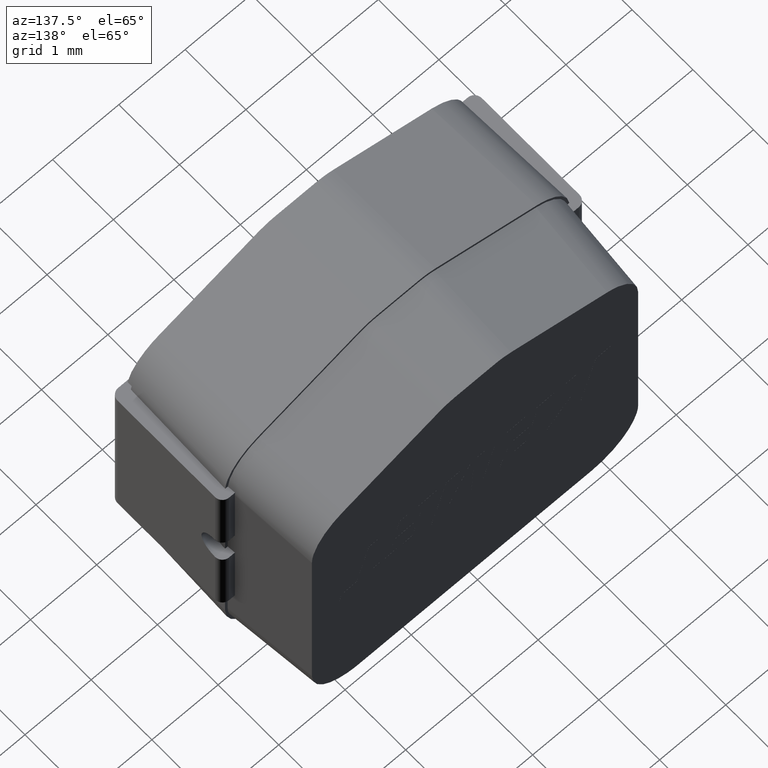
[diagram: clean part render]
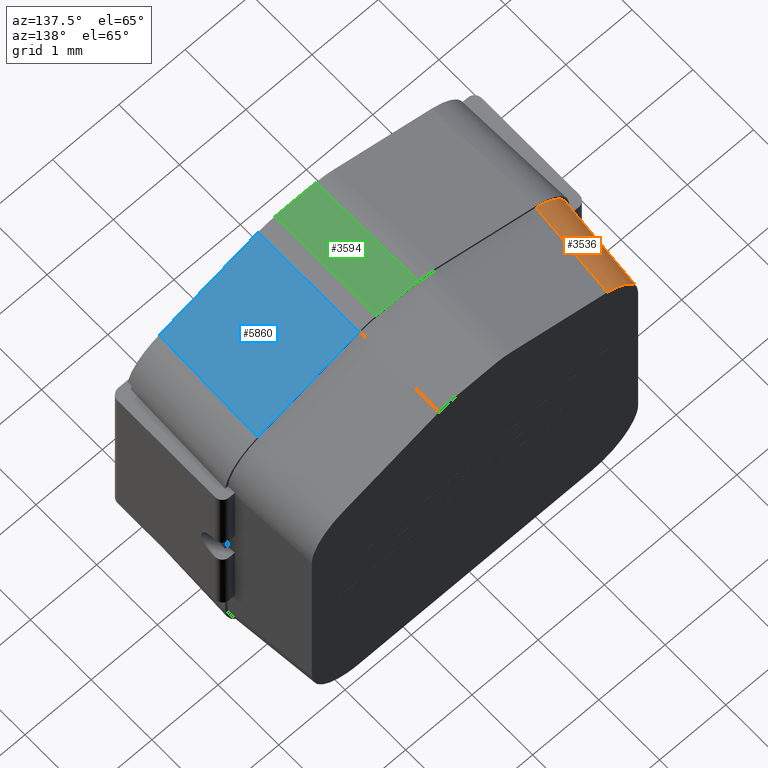
[diagram: same view with three faces highlighted in distinct colors, each labeled with its STEP entity id]
A machine part, auxiliary view with three faces highlighted in distinct colors.
Their STEP definitions:

[orange] entity #3536 — the highlighted cylindrical surface (partial cylindrical patch) has radius 0.71 mm, axis along (-0.0754, -0.9958, 0.0528).
#62 = VERTEX_POINT ( 'NONE', #2781 ) ;
#74 = CARTESIAN_POINT ( 'NONE',  ( -2.554833647306810729, 1.714679783632456767, 1.349999999999999867 ) ) ;
#238 = CARTESIAN_POINT ( 'NONE',  ( -2.286518789225265635, 2.959999999999999520, 1.785695894529399474 ) ) ;
#256 = ORIENTED_EDGE ( 'NONE', *, *, #1996, .F. ) ;
#444 = CARTESIAN_POINT ( 'NONE',  ( -1.997098575555594113, 2.959999999999999964, 1.891036237500124617 ) ) ;
#474 = VERTEX_POINT ( 'NONE', #444 ) ;
#504 = FACE_OUTER_BOUND ( 'NONE', #5349, .T. ) ;
#579 = DIRECTION ( 'NONE',  ( 0.07539555564725804182, 0.9957552200655834795, -0.05279253641171968020 ) ) ;
#668 = VERTEX_POINT ( 'NONE', #5033 ) ;
#670 = DIRECTION ( 'NONE',  ( 0.9971457380653673264, -0.07550084143950758220, 0.0000000000000000000 ) ) ;
#758 = CARTESIAN_POINT ( 'NONE',  ( -2.096140873847363917, 1.651940331433728426, 1.960386401365636244 ) ) ;
#1109 = CARTESIAN_POINT ( 'NONE',  ( -2.548948611716070456, 1.788000000000000034, 1.350000000000000089 ) ) ;
#1181 = ORIENTED_EDGE ( 'NONE', *, *, #3558, .F. ) ;
#1341 = CARTESIAN_POINT ( 'NONE',  ( -2.557765627673139974, 1.677999999999999936, 1.350000000000000089 ) ) ;
#1367 = VECTOR ( 'NONE', #579, 999.9999999999998863 ) ;
#1456 =( BOUNDED_CURVE ( )  B_SPLINE_CURVE ( 3, ( #2410, #2446, #238, #4702 ),
 .UNSPECIFIED., .F., .F. ) 
 B_SPLINE_CURVE_WITH_KNOTS ( ( 4, 4 ),
 ( 5.674317249562889742, 6.892053364796282722 ),
 .UNSPECIFIED. ) 
 CURVE ( )  GEOMETRIC_REPRESENTATION_ITEM ( )  RATIONAL_B_SPLINE_CURVE ( ( 1.000000000000000000, 0.8801972970401995555, 0.8801972970401995555, 1.000000000000000000 ) ) 
 REPRESENTATION_ITEM ( '' )  );
#1556 = CARTESIAN_POINT ( 'NONE',  ( -2.548948611716070456, 1.788000000000000034, 1.350000000000000089 ) ) ;
#1592 = AXIS2_PLACEMENT_3D ( 'NONE', #2488, #5136, #670 ) ;
#1782 = VECTOR ( 'NONE', #3428, 999.9999999999998863 ) ;
#1917 = LINE ( 'NONE', #758, #1782 ) ;
#1963 = CARTESIAN_POINT ( 'NONE',  ( -2.557765627673139974, 1.677999999999999936, 1.350000000000000089 ) ) ;
#1970 = ORIENTED_EDGE ( 'NONE', *, *, #2579, .T. ) ;
#1996 = EDGE_CURVE ( 'NONE', #3918, #668, #5110, .T. ) ;
#2063 = VERTEX_POINT ( 'NONE', #1963 ) ;
#2258 = CARTESIAN_POINT ( 'NONE',  ( -2.362445925600105134, 1.678000000000000158, 1.861359497538845220 ) ) ;
#2367 =( BOUNDED_CURVE ( )  B_SPLINE_CURVE ( 3, ( #4845, #2258, #2690, #1341 ),
 .UNSPECIFIED., .F., .F. ) 
 B_SPLINE_CURVE_WITH_KNOTS ( ( 4, 4 ),
 ( 5.674317249562889742, 6.812811160432424629 ),
 .UNSPECIFIED. ) 
 CURVE ( )  GEOMETRIC_REPRESENTATION_ITEM ( )  RATIONAL_B_SPLINE_CURVE ( ( 1.000000000000000000, 0.8948714022629530307, 0.8948714022629530307, 1.000000000000000000 ) ) 
 REPRESENTATION_ITEM ( '' )  );
#2410 = CARTESIAN_POINT ( 'NONE',  ( -2.462930860524719545, 2.959999999999999964, 1.225758788245342679 ) ) ;
#2446 = CARTESIAN_POINT ( 'NONE',  ( -2.462930860524720433, 2.959999999999999520, 1.533753346537836793 ) ) ;
#2488 = CARTESIAN_POINT ( 'NONE',  ( -1.853999684790078595, 1.598334734011678027, 1.295108952110854306 ) ) ;
#2546 = CYLINDRICAL_SURFACE ( 'NONE', #1592, 0.7099999999999999645 ) ;
#2579 = EDGE_CURVE ( 'NONE', #62, #2063, #4490, .T. ) ;
#2690 = CARTESIAN_POINT ( 'NONE',  ( -2.535132902920688824, 1.678000000000000158, 1.634509479704553625 ) ) ;
#2781 = CARTESIAN_POINT ( 'NONE',  ( -2.548948611716070456, 1.788000000000000034, 1.350000000000000089 ) ) ;
#2861 = ORIENTED_EDGE ( 'NONE', *, *, #4776, .F. ) ;
#3210 = ORIENTED_EDGE ( 'NONE', *, *, #5772, .F. ) ;
#3305 = ORIENTED_EDGE ( 'NONE', *, *, #5359, .F. ) ;
#3349 =( BOUNDED_CURVE ( )  B_SPLINE_CURVE ( 3, ( #1556, #5679, #5245, #5265 ),
 .UNSPECIFIED., .F., .F. ) 
 B_SPLINE_CURVE_WITH_KNOTS ( ( 4, 4 ),
 ( 0.5213919610274313499, 0.6088680576166981551 ),
 .UNSPECIFIED. ) 
 CURVE ( )  GEOMETRIC_REPRESENTATION_ITEM ( )  RATIONAL_B_SPLINE_CURVE ( ( 1.000000000000000000, 0.9993624293604638220, 0.9993624293604638220, 1.000000000000000000 ) ) 
 REPRESENTATION_ITEM ( '' )  );
#3356 = CARTESIAN_POINT ( 'NONE',  ( -2.544660921943755039, 1.880584448305675949, 1.282986793349293553 ) ) ;
#3428 = DIRECTION ( 'NONE',  ( -0.07539555564725805570, -0.9957552200655834795, 0.05279253641171968020 ) ) ;
#3536 = ADVANCED_FACE ( 'NONE', ( #504 ), #2546, .T. ) ;
#3558 = EDGE_CURVE ( 'NONE', #668, #474, #1456, .T. ) ;
#3720 = VERTEX_POINT ( 'NONE', #4363 ) ;
#3784 = CARTESIAN_POINT ( 'NONE',  ( -2.557765627673139974, 1.677999999999999936, 1.350000000000000089 ) ) ;
#3918 = VERTEX_POINT ( 'NONE', #5053 ) ;
#4363 = CARTESIAN_POINT ( 'NONE',  ( -2.094167715030875065, 1.677999999999999936, 1.959004780688245795 ) ) ;
#4490 =( BOUNDED_CURVE ( )  B_SPLINE_CURVE ( 3, ( #1109, #5485, #74, #3784 ),
 .UNSPECIFIED., .F., .T. ) 
 B_SPLINE_CURVE_WITH_KNOTS ( ( 4, 4 ),
 ( 4.624912883795422758, 4.633146776020831581 ),
 .UNSPECIFIED. ) 
 CURVE ( )  GEOMETRIC_REPRESENTATION_ITEM ( )  RATIONAL_B_SPLINE_CURVE ( ( 1.000000000000000000, 0.9999943502595481926, 0.9999943502595481926, 1.000000000000000000 ) ) 
 REPRESENTATION_ITEM ( '' )  );
#4702 = CARTESIAN_POINT ( 'NONE',  ( -1.997098575555594113, 2.959999999999999964, 1.891036237500124617 ) ) ;
#4776 = EDGE_CURVE ( 'NONE', #62, #3918, #3349, .T. ) ;
#4845 = CARTESIAN_POINT ( 'NONE',  ( -2.094167715030875065, 1.677999999999999936, 1.959004780688245795 ) ) ;
#5033 = CARTESIAN_POINT ( 'NONE',  ( -2.462930860524719545, 2.959999999999999964, 1.225758788245342679 ) ) ;
#5053 = CARTESIAN_POINT ( 'NONE',  ( -2.551671134678408226, 1.788000000000000034, 1.287895397150551569 ) ) ;
#5110 = LINE ( 'NONE', #3356, #1367 ) ;
#5136 = DIRECTION ( 'NONE',  ( -0.07539555564725804182, -0.9957552200655833685, 0.05279253641171967326 ) ) ;
#5245 = CARTESIAN_POINT ( 'NONE',  ( -2.551671134678408226, 1.788000000000000034, 1.308633596224506368 ) ) ;
#5265 = CARTESIAN_POINT ( 'NONE',  ( -2.551671134678408226, 1.788000000000000034, 1.287895397150551569 ) ) ;
#5349 = EDGE_LOOP ( 'NONE', ( #2861, #1970, #3305, #3210, #1181, #256 ) ) ;
#5359 = EDGE_CURVE ( 'NONE', #3720, #2063, #2367, .T. ) ;
#5485 = CARTESIAN_POINT ( 'NONE',  ( -2.551894625383076320, 1.751346657457445444, 1.349999999999999867 ) ) ;
#5679 = CARTESIAN_POINT ( 'NONE',  ( -2.550763048054926596, 1.788000000000000034, 1.329348337618574405 ) ) ;
#5772 = EDGE_CURVE ( 'NONE', #474, #3720, #1917, .T. ) ;

[blue] entity #5860 — the highlighted planar face has unit normal (0.3419, -0.0286, 0.9393).
#144 = EDGE_CURVE ( 'NONE', #3088, #5334, #2450, .T. ) ;
#337 = EDGE_CURVE ( 'NONE', #3088, #5193, #3314, .T. ) ;
#373 = DIRECTION ( 'NONE',  ( 0.02861374652457510798, 0.9993897286868245189, 0.02003556101292933503 ) ) ;
#428 = VECTOR ( 'NONE', #5251, 999.9999999999998863 ) ;
#556 = DIRECTION ( 'NONE',  ( -0.005046324248557979356, -0.9995776509022397116, -0.02861912696674281595 ) ) ;
#980 = DIRECTION ( 'NONE',  ( 0.9396926207859080948, 0.0000000000000000000, -0.3420201433256696011 ) ) ;
#1051 = CARTESIAN_POINT ( 'NONE',  ( 2.583568262622566003, 0.0000000000000000000, 1.772318168920743009 ) ) ;
#1263 = CARTESIAN_POINT ( 'NONE',  ( 2.058674063488480144, 0.0000000000000000000, 1.963364033544547249 ) ) ;
#1374 = LINE ( 'NONE', #2774, #5685 ) ;
#1839 = DIRECTION ( 'NONE',  ( 0.3418800445084970718, -0.02861949137229487239, 0.9393077024492342275 ) ) ;
#1910 = ORIENTED_EDGE ( 'NONE', *, *, #144, .F. ) ;
#2128 = VECTOR ( 'NONE', #373, 1000.000000000000000 ) ;
#2224 = PLANE ( 'NONE',  #4928 ) ;
#2450 = LINE ( 'NONE', #1051, #5847 ) ;
#2613 = EDGE_LOOP ( 'NONE', ( #1910, #2715, #5080, #3236 ) ) ;
#2637 = CARTESIAN_POINT ( 'NONE',  ( 2.107018193989935284, 1.688511059673867720, 1.997214958149860387 ) ) ;
#2702 = CARTESIAN_POINT ( 'NONE',  ( 2.600000000000003197, 1.677999999999999936, 1.817463996327659759 ) ) ;
#2715 = ORIENTED_EDGE ( 'NONE', *, *, #337, .T. ) ;
#2774 = CARTESIAN_POINT ( 'NONE',  ( 0.5657510247044343910, 0.0006667972367225338337, 2.506763898161967319 ) ) ;
#2785 = CARTESIAN_POINT ( 'NONE',  ( 0.5742189683468068573, 1.677999999999999936, 2.554787992990504630 ) ) ;
#2960 = CARTESIAN_POINT ( 'NONE',  ( 2.106717249534954650, 1.677999999999999936, 1.997004234573900749 ) ) ;
#3088 = VERTEX_POINT ( 'NONE', #1263 ) ;
#3236 = ORIENTED_EDGE ( 'NONE', *, *, #5538, .T. ) ;
#3288 = DIRECTION ( 'NONE',  ( -0.9396926207859080948, 0.0000000000000000000, 0.3420201433256695456 ) ) ;
#3314 = LINE ( 'NONE', #2637, #2128 ) ;
#3559 = CARTESIAN_POINT ( 'NONE',  ( 0.5657476584076176485, 0.0000000000000000000, 2.506744806944029680 ) ) ;
#4220 = CARTESIAN_POINT ( 'NONE',  ( 2.600000000000003197, 1.677999999999999936, 1.817463996327659759 ) ) ;
#4348 = EDGE_CURVE ( 'NONE', #5193, #5091, #4940, .T. ) ;
#4928 = AXIS2_PLACEMENT_3D ( 'NONE', #2702, #1839, #980 ) ;
#4940 = LINE ( 'NONE', #4220, #428 ) ;
#5026 = FACE_OUTER_BOUND ( 'NONE', #2613, .T. ) ;
#5080 = ORIENTED_EDGE ( 'NONE', *, *, #4348, .T. ) ;
#5091 = VERTEX_POINT ( 'NONE', #2785 ) ;
#5193 = VERTEX_POINT ( 'NONE', #2960 ) ;
#5251 = DIRECTION ( 'NONE',  ( -0.9396926207859082059, -0.0000000000000000000, 0.3420201433256696566 ) ) ;
#5334 = VERTEX_POINT ( 'NONE', #3559 ) ;
#5538 = EDGE_CURVE ( 'NONE', #5091, #5334, #1374, .T. ) ;
#5685 = VECTOR ( 'NONE', #556, 1000.000000000000114 ) ;
#5847 = VECTOR ( 'NONE', #3288, 1000.000000000000114 ) ;
#5860 = ADVANCED_FACE ( 'NONE', ( #5026 ), #2224, .T. ) ;

[green] entity #3594 — the highlighted planar face has unit normal (0, -0.0286, 0.9996).
#34 = EDGE_CURVE ( 'NONE', #4129, #215, #1597, .T. ) ;
#174 = VERTEX_POINT ( 'NONE', #1915 ) ;
#215 = VERTEX_POINT ( 'NONE', #4766 ) ;
#274 = VECTOR ( 'NONE', #3659, 999.9999999999998863 ) ;
#321 = ORIENTED_EDGE ( 'NONE', *, *, #1127, .T. ) ;
#507 = CARTESIAN_POINT ( 'NONE',  ( -0.3093409913230610320, 0.0006667972367225400137, 2.551975905171461889 ) ) ;
#553 = CARTESIAN_POINT ( 'NONE',  ( -2.600000000000000089, 1.677999999999999936, 2.599999999999999201 ) ) ;
#792 = CARTESIAN_POINT ( 'NONE',  ( 0.3178123012622514620, 1.678666797236722408, 2.600019091217936396 ) ) ;
#997 = ORIENTED_EDGE ( 'NONE', *, *, #1960, .F. ) ;
#1127 = EDGE_CURVE ( 'NONE', #215, #174, #1166, .T. ) ;
#1166 = LINE ( 'NONE', #4624, #4208 ) ;
#1307 = AXIS2_PLACEMENT_3D ( 'NONE', #3014, #2070, #2980 ) ;
#1597 = LINE ( 'NONE', #507, #274 ) ;
#1666 = ORIENTED_EDGE ( 'NONE', *, *, #34, .T. ) ;
#1737 = CARTESIAN_POINT ( 'NONE',  ( 0.3178089349654346640, 1.677999999999999936, 2.599999999999998757 ) ) ;
#1915 = CARTESIAN_POINT ( 'NONE',  ( 0.3093376250262445670, 0.0000000000000000000, 2.551956813953523806 ) ) ;
#1960 = EDGE_CURVE ( 'NONE', #4129, #2787, #3618, .T. ) ;
#2070 = DIRECTION ( 'NONE',  ( 8.336600460953782960E-17, -0.02861949137229487933, 0.9995903784618933585 ) ) ;
#2145 = VECTOR ( 'NONE', #4577, 1000.000000000000000 ) ;
#2787 = VERTEX_POINT ( 'NONE', #1737 ) ;
#2980 = DIRECTION ( 'NONE',  ( 0.0000000000000000000, -0.9995903784618932475, -0.02861949137229487586 ) ) ;
#3014 = CARTESIAN_POINT ( 'NONE',  ( -2.600000000000000089, 1.677999999999999936, 2.599999999999999201 ) ) ;
#3174 = EDGE_CURVE ( 'NONE', #174, #2787, #4926, .T. ) ;
#3498 = CARTESIAN_POINT ( 'NONE',  ( -0.3178089349654342199, 1.677999999999999936, 2.599999999999999201 ) ) ;
#3594 = ADVANCED_FACE ( 'NONE', ( #4242 ), #5236, .T. ) ;
#3618 = LINE ( 'NONE', #553, #2145 ) ;
#3659 = DIRECTION ( 'NONE',  ( 0.005046324248557983692, -0.9995776509022398226, -0.02861912696674282289 ) ) ;
#3733 = EDGE_LOOP ( 'NONE', ( #321, #5776, #997, #1666 ) ) ;
#4129 = VERTEX_POINT ( 'NONE', #3498 ) ;
#4145 = DIRECTION ( 'NONE',  ( 1.000000000000000000, -0.0000000000000000000, -8.340016711426954056E-17 ) ) ;
#4208 = VECTOR ( 'NONE', #4145, 1000.000000000000000 ) ;
#4242 = FACE_OUTER_BOUND ( 'NONE', #3733, .T. ) ;
#4577 = DIRECTION ( 'NONE',  ( 1.000000000000000000, 0.0000000000000000000, -8.340016711426952823E-17 ) ) ;
#4624 = CARTESIAN_POINT ( 'NONE',  ( -2.600000000000000089, 0.0000000000000000000, 2.551956813953524250 ) ) ;
#4766 = CARTESIAN_POINT ( 'NONE',  ( -0.3093376250262441229, 0.0000000000000000000, 2.551956813953524250 ) ) ;
#4926 = LINE ( 'NONE', #792, #5552 ) ;
#5236 = PLANE ( 'NONE',  #1307 ) ;
#5552 = VECTOR ( 'NONE', #5770, 999.9999999999998863 ) ;
#5770 = DIRECTION ( 'NONE',  ( 0.005046324248557980223, 0.9995776509022398226, 0.02861912696674282289 ) ) ;
#5776 = ORIENTED_EDGE ( 'NONE', *, *, #3174, .T. ) ;